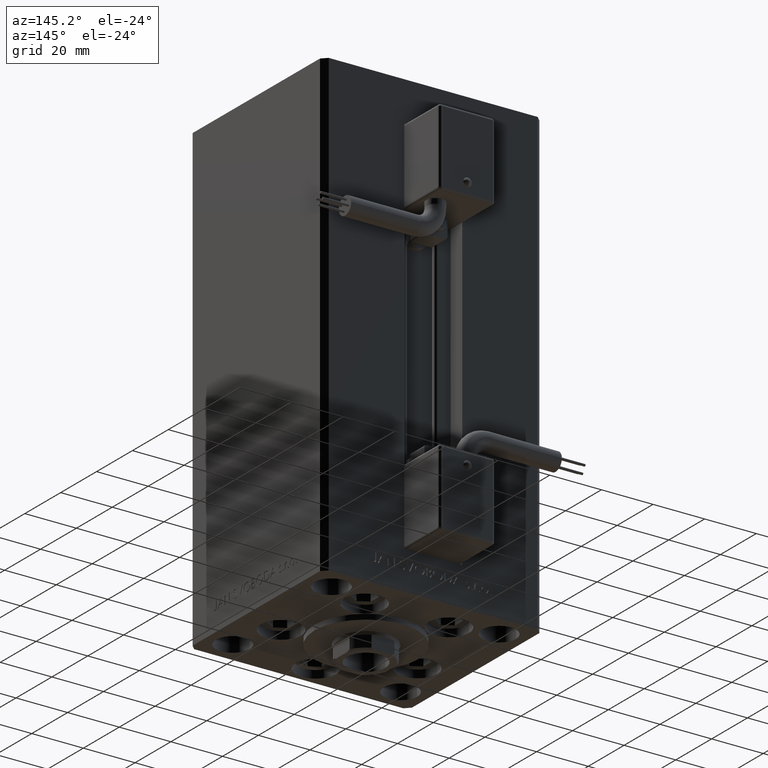
[diagram: clean part render]
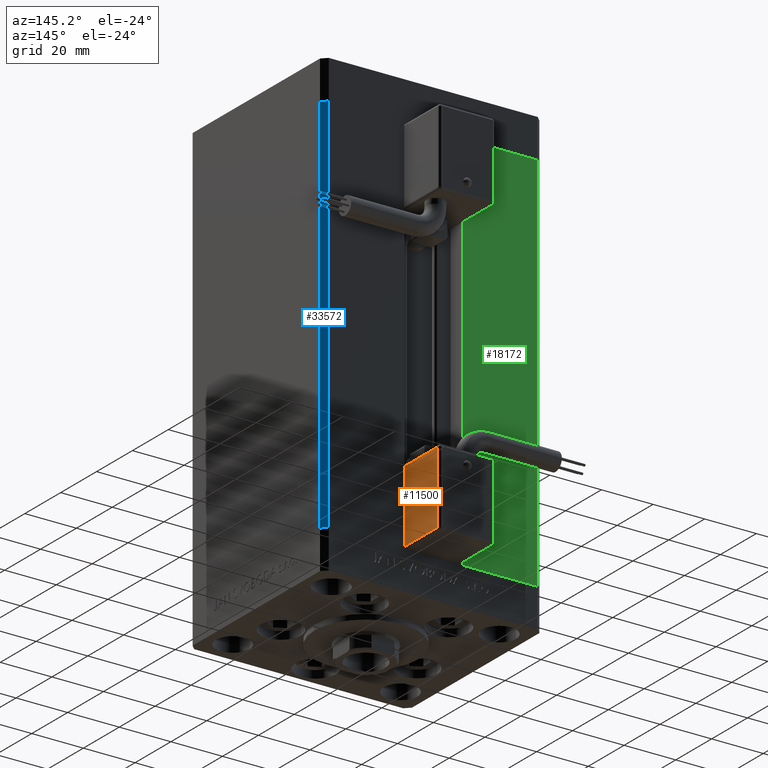
[diagram: same view with three faces highlighted in distinct colors, each labeled with its STEP entity id]
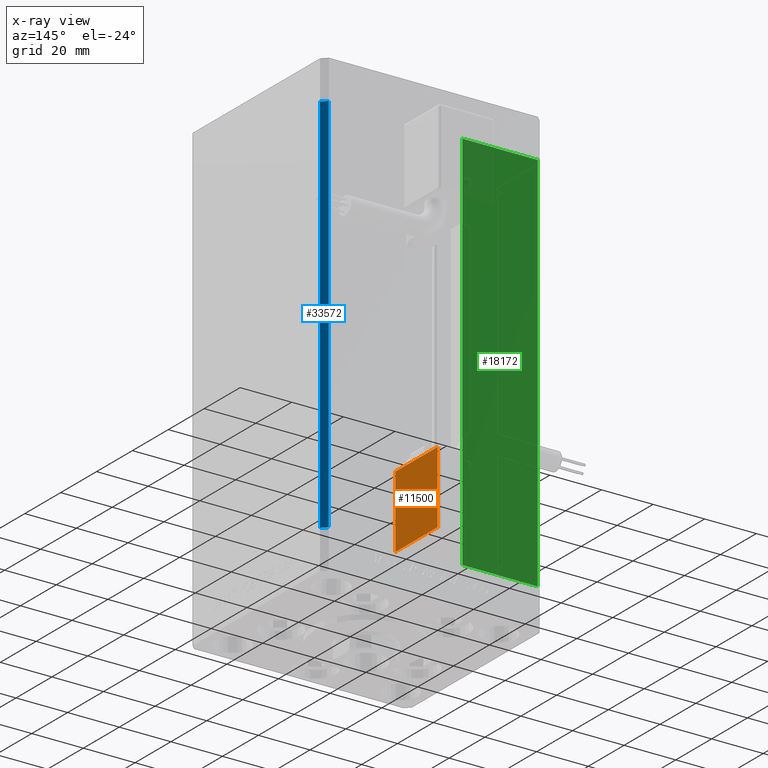
[diagram: x-ray of the same camera — body ghosted, the three highlighted faces saturated]
A machine part, auxiliary view with three faces highlighted in distinct colors.
The next image is the same camera in x-ray (body ghosted, the three faces saturated) — at least one of them is partly hidden behind the body in this view.
Their STEP definitions:

[orange] entity #11500 — the highlighted planar face has unit normal (-1, 0, 0).
#939 = ORIENTED_EDGE ( 'NONE', *, *, #18885, .T. ) ;
#1921 = CARTESIAN_POINT ( 'NONE',  ( -10.80000000000000071, 26.00000000000000000, -54.00000000000000000 ) ) ;
#2919 = VERTEX_POINT ( 'NONE', #36429 ) ;
#10824 = ORIENTED_EDGE ( 'NONE', *, *, #25612, .T. ) ;
#11125 = VECTOR ( 'NONE', #38020, 1000.000000000000000 ) ;
#11500 = ADVANCED_FACE ( 'NONE', ( #14323 ), #14586, .F. ) ;
#11527 = EDGE_CURVE ( 'NONE', #2919, #48353, #39642, .T. ) ;
#14323 = FACE_OUTER_BOUND ( 'NONE', #51347, .T. ) ;
#14586 = PLANE ( 'NONE',  #27951 ) ;
#15203 = DIRECTION ( 'NONE',  ( 3.108624468950000014E-32, -1.000000000000000000, -1.400000000000000069E-16 ) ) ;
#16022 = VECTOR ( 'NONE', #22856, 1000.000000000000000 ) ;
#17336 = DIRECTION ( 'NONE',  ( -3.108624468950000014E-32, 1.000000000000000000, 1.400000000000000069E-16 ) ) ;
#18086 = VERTEX_POINT ( 'NONE', #42350 ) ;
#18203 = ORIENTED_EDGE ( 'NONE', *, *, #11527, .T. ) ;
#18885 = EDGE_CURVE ( 'NONE', #23896, #18086, #29767, .T. ) ;
#21337 = CARTESIAN_POINT ( 'NONE',  ( -10.80000000000000071, 26.00000000000000000, -26.00000000000000000 ) ) ;
#22856 = DIRECTION ( 'NONE',  ( -2.220446049250000002E-16, -1.200000000000000024E-16, 1.000000000000000000 ) ) ;
#23896 = VERTEX_POINT ( 'NONE', #33367 ) ;
#24302 = VECTOR ( 'NONE', #17336, 1000.000000000000000 ) ;
#25337 = LINE ( 'NONE', #21337, #24302 ) ;
#25612 = EDGE_CURVE ( 'NONE', #18086, #2919, #30409, .T. ) ;
#27381 = CARTESIAN_POINT ( 'NONE',  ( -10.80000000000000071, 26.00000000000000000, -55.00000000000000000 ) ) ;
#27417 = VECTOR ( 'NONE', #15203, 1000.000000000000000 ) ;
#27951 = AXIS2_PLACEMENT_3D ( 'NONE', #27381, #30851, #43644 ) ;
#29767 = LINE ( 'NONE', #42003, #11125 ) ;
#30409 = LINE ( 'NONE', #1921, #27417 ) ;
#30851 = DIRECTION ( 'NONE',  ( 1.000000000000000000, 4.930380657629929601E-32, 1.094764425253299406E-47 ) ) ;
#33170 = ORIENTED_EDGE ( 'NONE', *, *, #49680, .T. ) ;
#33198 = CARTESIAN_POINT ( 'NONE',  ( -10.80000000000000071, 27.00000000000000000, -26.00000000000000000 ) ) ;
#33367 = CARTESIAN_POINT ( 'NONE',  ( -10.80000000000000071, 50.50000000000000000, -26.00000000000000000 ) ) ;
#36429 = CARTESIAN_POINT ( 'NONE',  ( -10.80000000000000071, 27.00000000000000000, -54.00000000000000000 ) ) ;
#38020 = DIRECTION ( 'NONE',  ( 2.220446049250000002E-16, 1.200000000000000024E-16, -1.000000000000000000 ) ) ;
#39642 = LINE ( 'NONE', #51359, #16022 ) ;
#42003 = CARTESIAN_POINT ( 'NONE',  ( -10.80000000000000071, 50.50000000000000000, -55.00000000000000000 ) ) ;
#42350 = CARTESIAN_POINT ( 'NONE',  ( -10.80000000000000071, 50.50000000000000000, -54.00000000000000000 ) ) ;
#43644 = DIRECTION ( 'NONE',  ( 0.000000000000000000, -2.220446049250000002E-16, 1.000000000000000000 ) ) ;
#48353 = VERTEX_POINT ( 'NONE', #33198 ) ;
#49680 = EDGE_CURVE ( 'NONE', #48353, #23896, #25337, .T. ) ;
#51347 = EDGE_LOOP ( 'NONE', ( #33170, #939, #10824, #18203 ) ) ;
#51359 = CARTESIAN_POINT ( 'NONE',  ( -10.80000000000000071, 27.00000000000000000, -55.00000000000000000 ) ) ;

[blue] entity #33572 — the highlighted planar face has unit normal (0.7071, 0.7071, 0).
#1083 = VERTEX_POINT ( 'NONE', #29727 ) ;
#1480 = EDGE_CURVE ( 'NONE', #34523, #41728, #49910, .T. ) ;
#2265 = CARTESIAN_POINT ( 'NONE',  ( 40.50000000000000000, 37.50000000000000711, 0.000000000000000000 ) ) ;
#6533 = LINE ( 'NONE', #43829, #20667 ) ;
#7367 = VERTEX_POINT ( 'NONE', #37847 ) ;
#7539 = LINE ( 'NONE', #24568, #12910 ) ;
#12129 = CARTESIAN_POINT ( 'NONE',  ( 40.50000000000000000, 37.50000000000000711, 148.5000000000000000 ) ) ;
#12910 = VECTOR ( 'NONE', #15510, 1000.000000000000000 ) ;
#15510 = DIRECTION ( 'NONE',  ( -0.000000000000000000, -0.000000000000000000, -1.000000000000000000 ) ) ;
#20667 = VECTOR ( 'NONE', #40091, 1000.000000000000000 ) ;
#23739 = EDGE_CURVE ( 'NONE', #1083, #7367, #29952, .T. ) ;
#24568 = CARTESIAN_POINT ( 'NONE',  ( 42.50000000000000711, 35.50000000000001421, 148.5000000000000000 ) ) ;
#24657 = EDGE_CURVE ( 'NONE', #41728, #7367, #7539, .T. ) ;
#24836 = EDGE_LOOP ( 'NONE', ( #49852, #25100, #46087, #36155 ) ) ;
#25100 = ORIENTED_EDGE ( 'NONE', *, *, #30537, .F. ) ;
#26279 = CARTESIAN_POINT ( 'NONE',  ( 40.50000000000000000, 37.50000000000000711, 148.5000000000000000 ) ) ;
#26799 = FACE_OUTER_BOUND ( 'NONE', #24836, .T. ) ;
#29392 = CARTESIAN_POINT ( 'NONE',  ( 40.50000000000000000, 37.50000000000000711, 148.5000000000000000 ) ) ;
#29727 = CARTESIAN_POINT ( 'NONE',  ( 40.50000000000000000, 37.50000000000000711, 0.000000000000000000 ) ) ;
#29952 = LINE ( 'NONE', #2265, #42654 ) ;
#30181 = DIRECTION ( 'NONE',  ( 0.7071067811865500152, -0.7071067811865451302, 0.000000000000000000 ) ) ;
#30537 = EDGE_CURVE ( 'NONE', #34523, #1083, #6533, .T. ) ;
#32724 = AXIS2_PLACEMENT_3D ( 'NONE', #26279, #50522, #42792 ) ;
#33572 = ADVANCED_FACE ( 'NONE', ( #26799 ), #46539, .T. ) ;
#34523 = VERTEX_POINT ( 'NONE', #12129 ) ;
#36155 = ORIENTED_EDGE ( 'NONE', *, *, #24657, .T. ) ;
#37847 = CARTESIAN_POINT ( 'NONE',  ( 42.50000000000000711, 35.50000000000001421, 0.000000000000000000 ) ) ;
#39600 = VECTOR ( 'NONE', #30181, 1000.000000000000114 ) ;
#40091 = DIRECTION ( 'NONE',  ( -0.000000000000000000, -0.000000000000000000, -1.000000000000000000 ) ) ;
#41728 = VERTEX_POINT ( 'NONE', #49572 ) ;
#42654 = VECTOR ( 'NONE', #42994, 1000.000000000000114 ) ;
#42792 = DIRECTION ( 'NONE',  ( -0.7071067811865500152, 0.7071067811865451302, 0.000000000000000000 ) ) ;
#42994 = DIRECTION ( 'NONE',  ( 0.7071067811865500152, -0.7071067811865451302, 0.000000000000000000 ) ) ;
#43829 = CARTESIAN_POINT ( 'NONE',  ( 40.50000000000000000, 37.50000000000000711, 148.5000000000000000 ) ) ;
#46087 = ORIENTED_EDGE ( 'NONE', *, *, #1480, .T. ) ;
#46539 = PLANE ( 'NONE',  #32724 ) ;
#49572 = CARTESIAN_POINT ( 'NONE',  ( 42.50000000000000711, 35.50000000000001421, 148.5000000000000000 ) ) ;
#49852 = ORIENTED_EDGE ( 'NONE', *, *, #23739, .F. ) ;
#49910 = LINE ( 'NONE', #29392, #39600 ) ;
#50522 = DIRECTION ( 'NONE',  ( 0.7071067811865451302, 0.7071067811865500152, -0.000000000000000000 ) ) ;

[green] entity #18172 — the highlighted planar face has unit normal (-0, -1, 0).
#969 = CARTESIAN_POINT ( 'NONE',  ( -11.25000000000000000, 37.50000000000000000, 148.5000000000000000 ) ) ;
#1260 = CARTESIAN_POINT ( 'NONE',  ( -11.25000000000000000, 37.50000000000000000, 0.000000000000000000 ) ) ;
#3000 = CARTESIAN_POINT ( 'NONE',  ( -11.25000000000000000, 37.50000000000000000, 148.5000000000000000 ) ) ;
#8409 = CARTESIAN_POINT ( 'NONE',  ( -40.50000000000000000, 37.50000000000000711, 148.5000000000000000 ) ) ;
#8508 = AXIS2_PLACEMENT_3D ( 'NONE', #969, #17960, #13966 ) ;
#8927 = FACE_OUTER_BOUND ( 'NONE', #40038, .T. ) ;
#12926 = PLANE ( 'NONE',  #8508 ) ;
#13966 = DIRECTION ( 'NONE',  ( 1.000000000000000000, -2.372271420139223331E-16, 0.000000000000000000 ) ) ;
#15074 = VERTEX_POINT ( 'NONE', #27639 ) ;
#15460 = VERTEX_POINT ( 'NONE', #42375 ) ;
#16816 = ORIENTED_EDGE ( 'NONE', *, *, #22530, .F. ) ;
#17052 = CARTESIAN_POINT ( 'NONE',  ( -11.25000000000000000, 37.50000000000000000, 148.5000000000000000 ) ) ;
#17743 = LINE ( 'NONE', #1260, #38551 ) ;
#17960 = DIRECTION ( 'NONE',  ( -2.372271420139223331E-16, -1.000000000000000000, 0.000000000000000000 ) ) ;
#18172 = ADVANCED_FACE ( 'NONE', ( #8927 ), #12926, .F. ) ;
#18752 = CARTESIAN_POINT ( 'NONE',  ( -40.50000000000000000, 37.50000000000000711, 0.000000000000000000 ) ) ;
#20101 = ORIENTED_EDGE ( 'NONE', *, *, #33837, .F. ) ;
#21424 = DIRECTION ( 'NONE',  ( -0.000000000000000000, -0.000000000000000000, -1.000000000000000000 ) ) ;
#22530 = EDGE_CURVE ( 'NONE', #15460, #47024, #17743, .T. ) ;
#22692 = LINE ( 'NONE', #3000, #29567 ) ;
#24212 = VECTOR ( 'NONE', #21424, 1000.000000000000000 ) ;
#27639 = CARTESIAN_POINT ( 'NONE',  ( -40.50000000000000000, 37.50000000000000711, 148.5000000000000000 ) ) ;
#29567 = VECTOR ( 'NONE', #43742, 1000.000000000000000 ) ;
#30008 = DIRECTION ( 'NONE',  ( -0.000000000000000000, -0.000000000000000000, 1.000000000000000000 ) ) ;
#32217 = ORIENTED_EDGE ( 'NONE', *, *, #51404, .T. ) ;
#32641 = LINE ( 'NONE', #8409, #24212 ) ;
#33837 = EDGE_CURVE ( 'NONE', #15074, #40311, #32641, .T. ) ;
#36713 = ORIENTED_EDGE ( 'NONE', *, *, #43620, .T. ) ;
#37739 = LINE ( 'NONE', #46794, #43053 ) ;
#38551 = VECTOR ( 'NONE', #30008, 1000.000000000000000 ) ;
#40038 = EDGE_LOOP ( 'NONE', ( #36713, #16816, #32217, #20101 ) ) ;
#40311 = VERTEX_POINT ( 'NONE', #18752 ) ;
#42259 = DIRECTION ( 'NONE',  ( -1.000000000000000000, 2.372271420139223331E-16, 0.000000000000000000 ) ) ;
#42375 = CARTESIAN_POINT ( 'NONE',  ( -11.25000000000000000, 37.50000000000000000, 0.000000000000000000 ) ) ;
#43053 = VECTOR ( 'NONE', #42259, 1000.000000000000000 ) ;
#43620 = EDGE_CURVE ( 'NONE', #15074, #47024, #22692, .T. ) ;
#43742 = DIRECTION ( 'NONE',  ( 1.000000000000000000, 0.000000000000000000, 0.000000000000000000 ) ) ;
#46794 = CARTESIAN_POINT ( 'NONE',  ( -11.25000000000000000, 37.50000000000000000, 0.000000000000000000 ) ) ;
#47024 = VERTEX_POINT ( 'NONE', #17052 ) ;
#51404 = EDGE_CURVE ( 'NONE', #15460, #40311, #37739, .T. ) ;